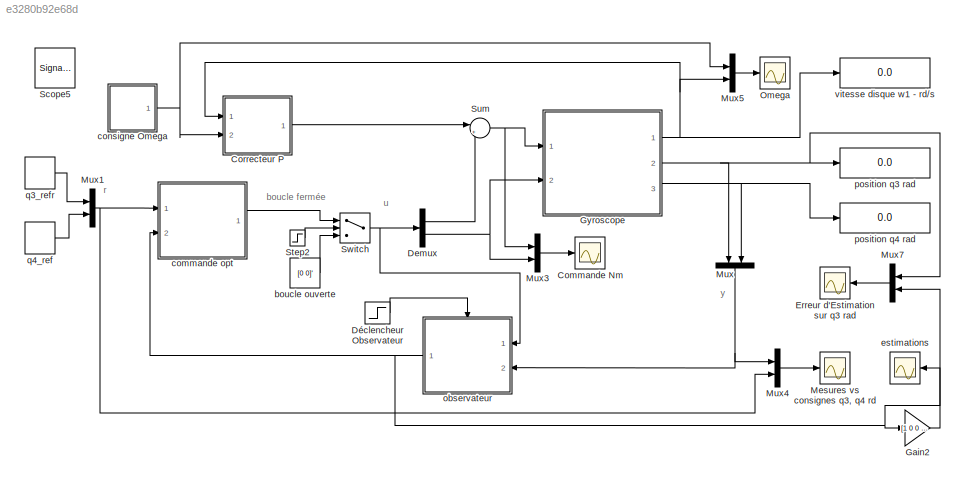
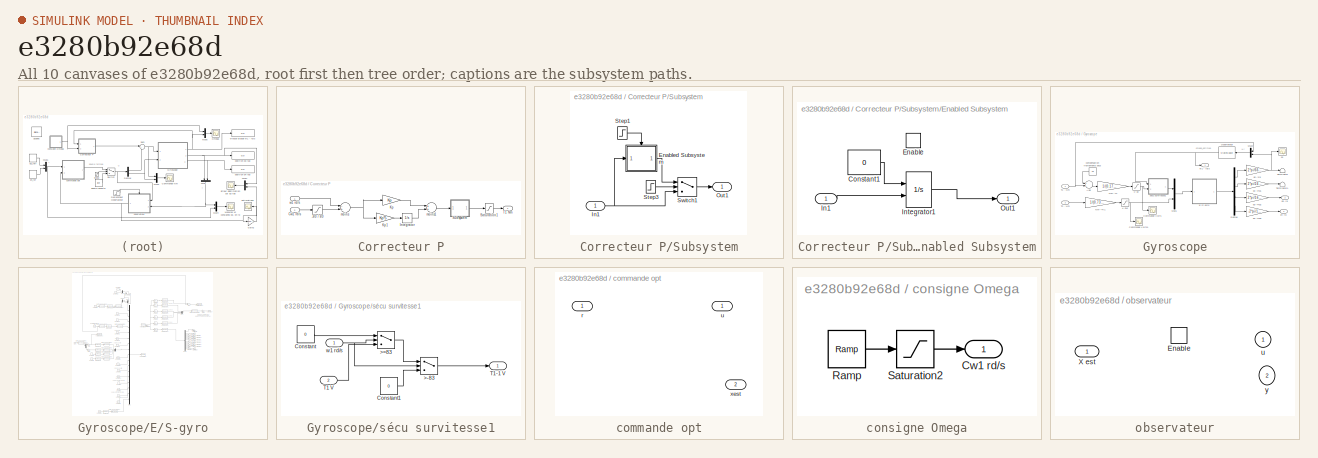
[diagram: thumbnail index - all 10 canvases of the model, root first then tree order]
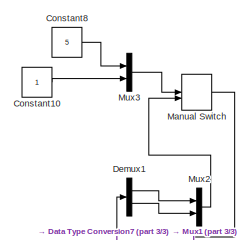
[diagram: Gyroscope/E/S-gyro - part 1/3, top center region]
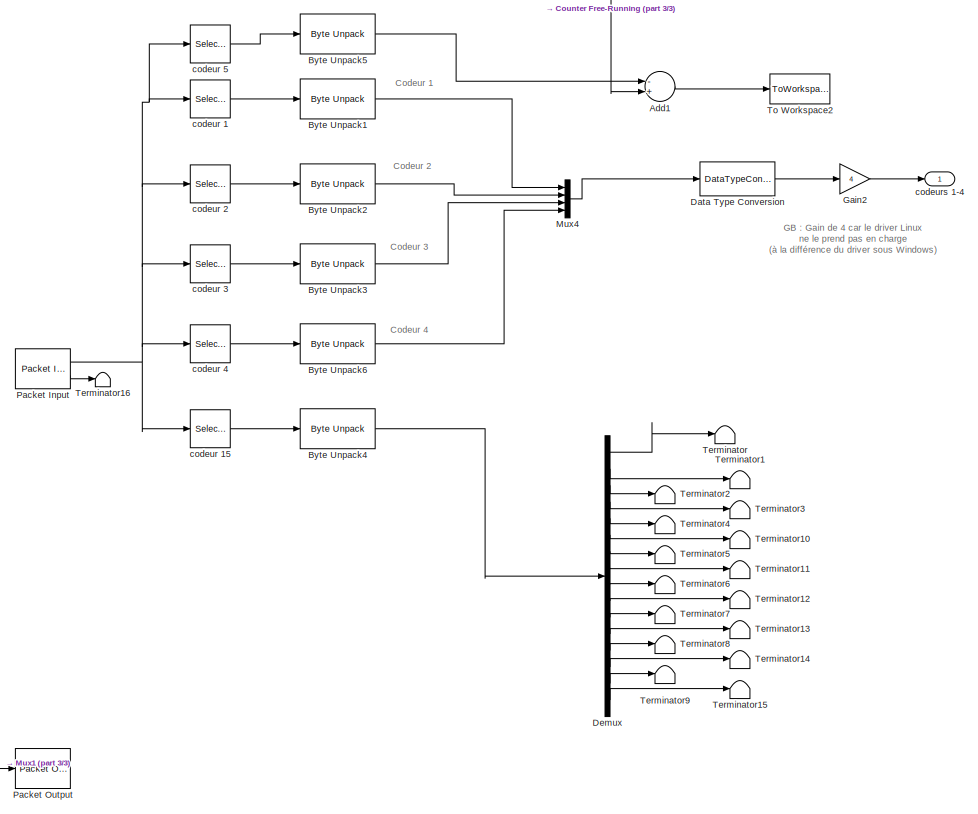
[diagram: Gyroscope/E/S-gyro - part 2/3, middle right region]
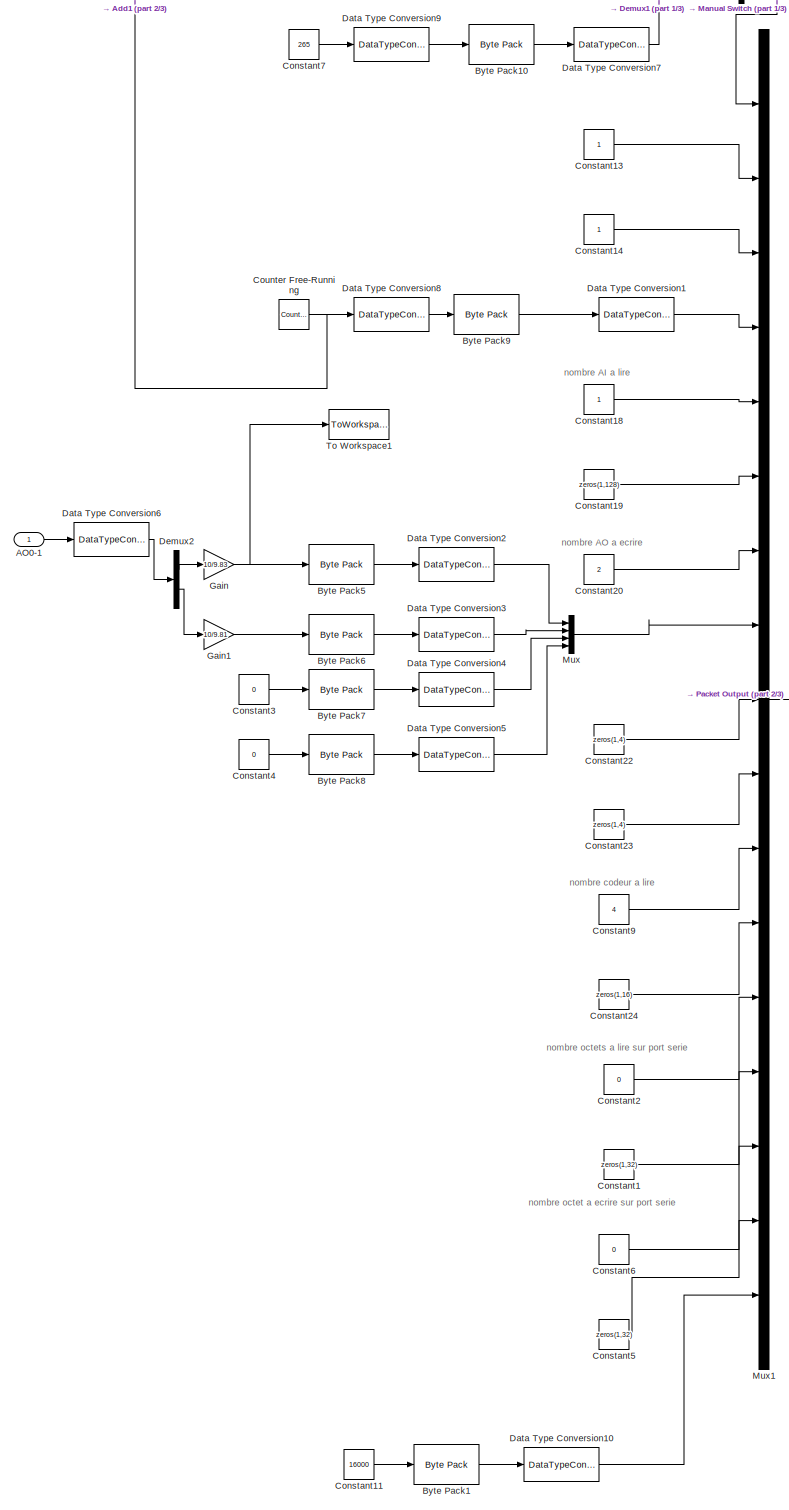
[diagram: Gyroscope/E/S-gyro - part 3/3, left side, full height]
MODEL slx_e3280b92e68d
KIND model
BLOCK [Scope] Commande Nm
  DataFormat = StructureWithTime
  Floating = off
  LimitDataPoints = off
  NumInputPorts = 1
  Ports = [1]
  SampleTime = 0
  SaveName = commande
  SaveToWorkspace = on
  ShowLegends = off
  TimeRange = 70
  YMax = 0.5
  YMin = -0.2
BLOCK [SubSystem] Correcteur P
  FunctionWithSeparateData = off
  MaskHideContents = off
  MinAlgLoopOccurrences = off
  Opaque = off
  Ports = [2, 1]
  PropExecContextOutsideSubsystem = off
  RTWSystemCode = Auto
  RequestExecContextInheritance = off
BLOCK [Saturate] Correcteur P/-80 // 80
  InputPortMap = u0
  LowerLimit = -80
  Ports = [1, 1]
  UpperLimit = 80
BLOCK [Inport] Correcteur P/Cw1 rd//s
  IconDisplay = Port number
  Port = 2
BLOCK [Integrator] Correcteur P/Integrator
  Ports = [1, 1]
BLOCK [Gain] Correcteur P/Kp
  Gain = Kp
  OutDataTypeStr = Inherit: Inherit via internal rule
  ParamDataTypeStr = Inherit: Inherit via internal rule
  SaturateOnIntegerOverflow = off
BLOCK [Gain] Correcteur P/Kp1
  Gain = Kp*5
  OutDataTypeStr = Inherit: Inherit via internal rule
  ParamDataTypeStr = Inherit: Inherit via internal rule
  SaturateOnIntegerOverflow = off
BLOCK [Saturate] Correcteur P/Saturation1
  InputPortMap = u0
  LowerLimit = -0.2
  Ports = [1, 1]
  UpperLimit = 0.2
BLOCK [SubSystem] Correcteur P/Subsystem
  FunctionWithSeparateData = off
  MaskHideContents = off
  MinAlgLoopOccurrences = off
  Opaque = off
  Ports = [1, 1]
  PropExecContextOutsideSubsystem = off
  RTWSystemCode = Auto
  RequestExecContextInheritance = off
BLOCK [SubSystem] Correcteur P/Subsystem/Enabled Subsystem
  FunctionWithSeparateData = off
  MaskHideContents = off
  MinAlgLoopOccurrences = off
  Opaque = off
  Ports = [1, 1, 1]
  PropExecContextOutsideSubsystem = off
  RTWSystemCode = Auto
  RequestExecContextInheritance = off
  TreatAsAtomicUnit = on
BLOCK [Constant] Correcteur P/Subsystem/Enabled Subsystem/Constant1
  Value = 0
BLOCK [EnablePort] Correcteur P/Subsystem/Enabled Subsystem/Enable
  Ports = []
BLOCK [Inport] Correcteur P/Subsystem/Enabled Subsystem/In1
  IconDisplay = Port number
BLOCK [Integrator] Correcteur P/Subsystem/Enabled Subsystem/Integrator1
  InitialConditionSource = external
  Ports = [2, 1]
BLOCK [Outport] Correcteur P/Subsystem/Enabled Subsystem/Out1
  IconDisplay = Port number
BLOCK [Inport] Correcteur P/Subsystem/In1
  IconDisplay = Port number
BLOCK [Outport] Correcteur P/Subsystem/Out1
  IconDisplay = Port number
BLOCK [Step] Correcteur P/Subsystem/Step1
  SampleTime = 0
  Time = 12
BLOCK [Step] Correcteur P/Subsystem/Step3
  SampleTime = 0
  Time = 14
BLOCK [Switch] Correcteur P/Subsystem/Switch1
  InputSameDT = off
  SaturateOnIntegerOverflow = off
  Threshold = 1
BLOCK [Outport] Correcteur P/T1 Nm
  IconDisplay = Port number
BLOCK [Sum] Correcteur P/moins
  InputSameDT = off
  Inputs = -+
  OutDataTypeStr = Inherit: Inherit via internal rule
  Ports = [2, 1]
  SaturateOnIntegerOverflow = off
BLOCK [Sum] Correcteur P/moins1
  InputSameDT = off
  OutDataTypeStr = Inherit: Inherit via internal rule
  Ports = [2, 1]
  SaturateOnIntegerOverflow = off
BLOCK [Inport] Correcteur P/w1 rd//s
  IconDisplay = Port number
BLOCK [Demux] Demux
  DisplayOption = bar
  Outputs = 2
  Ports = [1, 2]
BLOCK [Step] Déclencheur Observateur
  SampleTime = 0
BLOCK [Scope] Erreur d'Estimation sur q3 rad
  DataFormat = StructureWithTime
  Floating = off
  LimitDataPoints = off
  NumInputPorts = 1
  Ports = [1]
  SampleTime = 0
  SaveName = theta3
  SaveToWorkspace = on
  ShowLegends = off
  TimeRange = 70
  YMax = 0.8
  YMin = -0.6000000000000001
BLOCK [Gain] Gain2
  Gain = [1 0 0 0 0]
  Multiplication = Matrix(K*u) (u vector)
  OutDataTypeStr = Inherit: Inherit via internal rule
  ParamDataTypeStr = Inherit: Inherit via internal rule
  SaturateOnIntegerOverflow = off
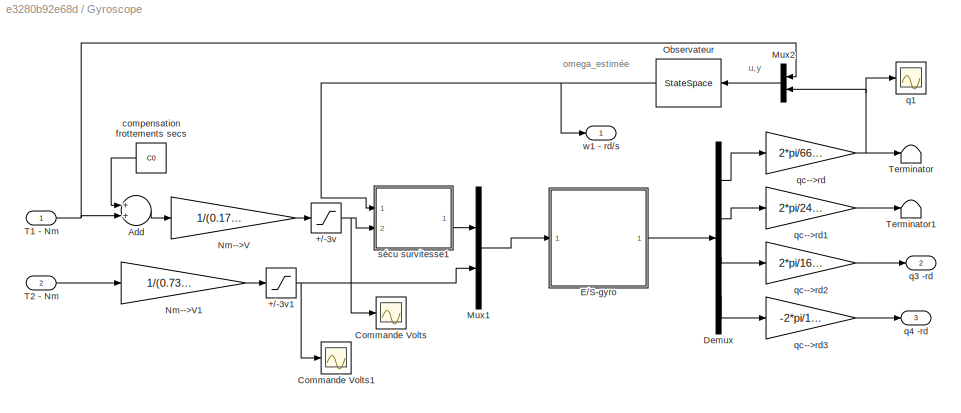
BLOCK [SubSystem] Gyroscope
  FunctionWithSeparateData = off
  MaskHideContents = off
  MinAlgLoopOccurrences = off
  Opaque = off
  Ports = [2, 3]
  PropExecContextOutsideSubsystem = off
  RTWSystemCode = Auto
  RequestExecContextInheritance = off
BLOCK [Saturate] Gyroscope/+//-3v
  InputPortMap = u0
  LowerLimit = -5
  Ports = [1, 1]
  UpperLimit = 5
BLOCK [Saturate] Gyroscope/+//-3v1
  InputPortMap = u0
  LowerLimit = -10
  Ports = [1, 1]
  UpperLimit = +10
BLOCK [Sum] Gyroscope/Add
  InputSameDT = off
  OutDataTypeStr = Inherit: Inherit via internal rule
  Ports = [2, 1]
  SaturateOnIntegerOverflow = off
BLOCK [Scope] Gyroscope/Commande Volts
  DataFormat = StructureWithTime
  Floating = off
  LimitDataPoints = off
  NumInputPorts = 1
  Ports = [1]
  SampleTime = 0
  SaveName = commande1
  SaveToWorkspace = on
  ShowLegends = off
  TimeRange = 40
  YMax = 3
  YMin = -3
BLOCK [Scope] Gyroscope/Commande Volts1
  DataFormat = StructureWithTime
  Floating = off
  LimitDataPoints = off
  NumInputPorts = 1
  Ports = [1]
  SampleTime = 0
  SaveName = commande2
  SaveToWorkspace = on
  ShowLegends = off
  TimeRange = 40
  YMax = 4
  YMin = -4
BLOCK [Demux] Gyroscope/Demux
  DisplayOption = bar
  Ports = [1, 4]
BLOCK [SubSystem] Gyroscope/E//S-gyro
  FunctionWithSeparateData = off
  MaskHideContents = off
  MinAlgLoopOccurrences = off
  Opaque = off
  Ports = [1, 1]
  PropExecContextOutsideSubsystem = off
  RTWSystemCode = Auto
  RequestExecContextInheritance = off
BLOCK [Inport] Gyroscope/E//S-gyro/AO0-1 
  IconDisplay = Port number
BLOCK [Sum] Gyroscope/E//S-gyro/Add1
  InputSameDT = off
  Inputs = -+
  OutDataTypeStr = Inherit: Inherit via internal rule
  Ports = [2, 1]
  SaturateOnIntegerOverflow = off
BLOCK [Reference] Gyroscope/E//S-gyro/Byte Pack1  REF=etargetslib/Byte Pack
  Ports = [1, 1]
  SourceBlock = etargetslib/Byte Pack
  SourceType = Byte pack
  byteAlign = 1
  datatypes = {'uint32'}
BLOCK [Reference] Gyroscope/E//S-gyro/Byte Pack10  REF=etargetslib/Byte Pack
  Ports = [1, 1]
  SourceBlock = etargetslib/Byte Pack
  SourceType = Byte pack
  byteAlign = 1
  datatypes = {'int16'}
BLOCK [Reference] Gyroscope/E//S-gyro/Byte Pack5  REF=etargetslib/Byte Pack
  Ports = [1, 1]
  SourceBlock = etargetslib/Byte Pack
  SourceType = Byte pack
  byteAlign = 1
  datatypes = {'double'}
BLOCK [Reference] Gyroscope/E//S-gyro/Byte Pack6  REF=etargetslib/Byte Pack
  Ports = [1, 1]
  SourceBlock = etargetslib/Byte Pack
  SourceType = Byte pack
  byteAlign = 1
  datatypes = {'double'}
BLOCK [Reference] Gyroscope/E//S-gyro/Byte Pack7  REF=etargetslib/Byte Pack
  Ports = [1, 1]
  SourceBlock = etargetslib/Byte Pack
  SourceType = Byte pack
  byteAlign = 1
  datatypes = {'double'}
BLOCK [Reference] Gyroscope/E//S-gyro/Byte Pack8  REF=etargetslib/Byte Pack
  Ports = [1, 1]
  SourceBlock = etargetslib/Byte Pack
  SourceType = Byte pack
  byteAlign = 1
  datatypes = {'double'}
BLOCK [Reference] Gyroscope/E//S-gyro/Byte Pack9  REF=etargetslib/Byte Pack
  Ports = [1, 1]
  SourceBlock = etargetslib/Byte Pack
  SourceType = Byte pack
  byteAlign = 1
  datatypes = {'uint32'}
BLOCK [Reference] Gyroscope/E//S-gyro/Byte Unpack1  REF=etargetslib/Byte Unpack
  Ports = [1, 1]
  SourceBlock = etargetslib/Byte Unpack
  SourceType = Byte Unpack
  byteAlign = 4
  datatypes = {'int32'}
  dimensions = {[1]}
BLOCK [Reference] Gyroscope/E//S-gyro/Byte Unpack2  REF=etargetslib/Byte Unpack
  Ports = [1, 1]
  SourceBlock = etargetslib/Byte Unpack
  SourceType = Byte Unpack
  byteAlign = 4
  datatypes = {'int32'}
  dimensions = {[1]}
BLOCK [Reference] Gyroscope/E//S-gyro/Byte Unpack3  REF=etargetslib/Byte Unpack
  Ports = [1, 1]
  SourceBlock = etargetslib/Byte Unpack
  SourceType = Byte Unpack
  byteAlign = 4
  datatypes = {'int32'}
  dimensions = {[1]}
BLOCK [Reference] Gyroscope/E//S-gyro/Byte Unpack4  REF=etargetslib/Byte Unpack
  Ports = [1, 1]
  SourceBlock = etargetslib/Byte Unpack
  SourceType = Byte Unpack
  byteAlign = 4
  datatypes = {'double'}
  dimensions = {[16]}
BLOCK [Reference] Gyroscope/E//S-gyro/Byte Unpack5  REF=etargetslib/Byte Unpack
  Ports = [1, 1]
  SourceBlock = etargetslib/Byte Unpack
  SourceType = Byte Unpack
  byteAlign = 4
  datatypes = {'uint32'}
  dimensions = {[1]}
BLOCK [Reference] Gyroscope/E//S-gyro/Byte Unpack6  REF=etargetslib/Byte Unpack
  Ports = [1, 1]
  SourceBlock = etargetslib/Byte Unpack
  SourceType = Byte Unpack
  byteAlign = 4
  datatypes = {'int32'}
  dimensions = {[1]}
BLOCK [Constant] Gyroscope/E//S-gyro/Constant1
  Value = zeros(1,32)
BLOCK [Constant] Gyroscope/E//S-gyro/Constant10
BLOCK [Constant] Gyroscope/E//S-gyro/Constant11
  OutDataTypeStr = uint32
  Value = 16000
BLOCK [Constant] Gyroscope/E//S-gyro/Constant13
BLOCK [Constant] Gyroscope/E//S-gyro/Constant14
BLOCK [Constant] Gyroscope/E//S-gyro/Constant18
BLOCK [Constant] Gyroscope/E//S-gyro/Constant19
  Value = zeros(1,128)
BLOCK [Constant] Gyroscope/E//S-gyro/Constant2
  Value = 0
BLOCK [Constant] Gyroscope/E//S-gyro/Constant20
  OutDataTypeStr = Inherit: Inherit via back propagation
  Value = 2
BLOCK [Constant] Gyroscope/E//S-gyro/Constant22
  Value = zeros(1,4)
BLOCK [Constant] Gyroscope/E//S-gyro/Constant23
  Value = zeros(1,4)
BLOCK [Constant] Gyroscope/E//S-gyro/Constant24
  Value = zeros(1,16)
BLOCK [Constant] Gyroscope/E//S-gyro/Constant3
  OutDataTypeStr = double
  Value = 0
BLOCK [Constant] Gyroscope/E//S-gyro/Constant4
  OutDataTypeStr = double
  Value = 0
BLOCK [Constant] Gyroscope/E//S-gyro/Constant5
  Value = zeros(1,32)
BLOCK [Constant] Gyroscope/E//S-gyro/Constant6
  Value = 0
BLOCK [Constant] Gyroscope/E//S-gyro/Constant7
  Value = 265
BLOCK [Constant] Gyroscope/E//S-gyro/Constant8
  Value = 5
BLOCK [Constant] Gyroscope/E//S-gyro/Constant9
  Value = 4
BLOCK [Reference] Gyroscope/E//S-gyro/Counter Free-Running  REF=simulink/Sources/Counter
Free-Running
  NumBits = 32
  Ports = [0, 1]
  SourceBlock = simulink/Sources/Counter\nFree-Running
  SourceType = Counter Free-Running
  tsamp = -1
BLOCK [DataTypeConversion] Gyroscope/E//S-gyro/Data Type Conversion
  RndMeth = Floor
  SaturateOnIntegerOverflow = off
BLOCK [DataTypeConversion] Gyroscope/E//S-gyro/Data Type Conversion1
  RndMeth = Floor
  SaturateOnIntegerOverflow = off
BLOCK [DataTypeConversion] Gyroscope/E//S-gyro/Data Type Conversion10
  RndMeth = Floor
  SaturateOnIntegerOverflow = off
BLOCK [DataTypeConversion] Gyroscope/E//S-gyro/Data Type Conversion2
  RndMeth = Floor
  SaturateOnIntegerOverflow = off
BLOCK [DataTypeConversion] Gyroscope/E//S-gyro/Data Type Conversion3
  RndMeth = Floor
  SaturateOnIntegerOverflow = off
BLOCK [DataTypeConversion] Gyroscope/E//S-gyro/Data Type Conversion4
  RndMeth = Floor
  SaturateOnIntegerOverflow = off
BLOCK [DataTypeConversion] Gyroscope/E//S-gyro/Data Type Conversion5
  RndMeth = Floor
  SaturateOnIntegerOverflow = off
BLOCK [DataTypeConversion] Gyroscope/E//S-gyro/Data Type Conversion6
  RndMeth = Floor
  SaturateOnIntegerOverflow = off
BLOCK [DataTypeConversion] Gyroscope/E//S-gyro/Data Type Conversion7
  RndMeth = Floor
  SaturateOnIntegerOverflow = off
BLOCK [DataTypeConversion] Gyroscope/E//S-gyro/Data Type Conversion8
  RndMeth = Floor
  SaturateOnIntegerOverflow = off
BLOCK [DataTypeConversion] Gyroscope/E//S-gyro/Data Type Conversion9
  RndMeth = Floor
  SaturateOnIntegerOverflow = off
BLOCK [Demux] Gyroscope/E//S-gyro/Demux
  DisplayOption = bar
  Outputs = 16
  Ports = [1, 16]
BLOCK [Demux] Gyroscope/E//S-gyro/Demux1
  DisplayOption = bar
  Outputs = 2
  Ports = [1, 2]
BLOCK [Demux] Gyroscope/E//S-gyro/Demux2
  DisplayOption = bar
  Outputs = 2
  Ports = [1, 2]
BLOCK [Gain] Gyroscope/E//S-gyro/Gain
  Gain = 10/9.83
  OutDataTypeStr = Inherit: Inherit via internal rule
  ParamDataTypeStr = Inherit: Inherit via internal rule
  SaturateOnIntegerOverflow = off
BLOCK [Gain] Gyroscope/E//S-gyro/Gain1
  Gain = 10/9.81
  OutDataTypeStr = Inherit: Inherit via internal rule
  ParamDataTypeStr = Inherit: Inherit via internal rule
  SaturateOnIntegerOverflow = off
BLOCK [Gain] Gyroscope/E//S-gyro/Gain2
  Gain = 4
  OutDataTypeStr = Inherit: Inherit via internal rule
  ParamDataTypeStr = Inherit: Inherit via internal rule
  SaturateOnIntegerOverflow = off
BLOCK [ManualSwitch] Gyroscope/E//S-gyro/Manual Switch
  CurrentSetting = 0
BLOCK [Mux] Gyroscope/E//S-gyro/Mux
  DisplayOption = bar
  Ports = [4, 1]
BLOCK [Mux] Gyroscope/E//S-gyro/Mux1
  DisplayOption = bar
  Inputs = 17
  Ports = [17, 1]
BLOCK [Mux] Gyroscope/E//S-gyro/Mux2
  DisplayOption = bar
  Inputs = 2
  Ports = [2, 1]
BLOCK [Mux] Gyroscope/E//S-gyro/Mux3
  DisplayOption = bar
  Inputs = 2
  Ports = [2, 1]
BLOCK [Mux] Gyroscope/E//S-gyro/Mux4
  DisplayOption = bar
  Ports = [4, 1]
BLOCK [Reference] Gyroscope/E//S-gyro/Packet Input  REF=rtwinlib/Packet Input
  AttributesFormatString = Standard Devices\nUDP Protocol [26CAh]
  ByteOrder = 1
  DataTypes = '265*uint8'
  DrvAddress = 9930
  DrvName = Standard_Devices/UDP_Protocol
  DrvOptions = [3232235522 9930]
  MaxMissedTicks = 10
  PacketID = 1
  PacketSize = 265
  Ports = [0, 2]
  SampleTime = Te
  ShowError = off
  ShowMissedTicks = on
  ShowReady = off
  ShowTimestamp = off
  SourceBlock = rtwinlib/Packet Input
  SourceType = RTWin Packet Input
  YieldWhenWaiting = off
BLOCK [Reference] Gyroscope/E//S-gyro/Packet Output  REF=rtwinlib/Packet Output
  AttributesFormatString = Standard Devices\nUDP Protocol [26CAh]
  ByteOrder = 1
  DataTypes = '265*uint8'
  DrvAddress = 9930
  DrvName = Standard_Devices/UDP_Protocol
  DrvOptions = [3232235522 9930]
  FinalValue = []
  InitialValue = []
  MaxMissedTicks = 10
  PacketID = 1
  PacketSize = 265
  Ports = [1]
  SampleTime = Te
  ShowError = off
  ShowMissedTicks = off
  ShowReady = off
  SourceBlock = rtwinlib/Packet Output
  SourceType = RTWin Packet Output
  YieldWhenWaiting = off
BLOCK [Terminator] Gyroscope/E//S-gyro/Terminator
BLOCK [Terminator] Gyroscope/E//S-gyro/Terminator1
BLOCK [Terminator] Gyroscope/E//S-gyro/Terminator10
BLOCK [Terminator] Gyroscope/E//S-gyro/Terminator11
BLOCK [Terminator] Gyroscope/E//S-gyro/Terminator12
BLOCK [Terminator] Gyroscope/E//S-gyro/Terminator13
BLOCK [Terminator] Gyroscope/E//S-gyro/Terminator14
BLOCK [Terminator] Gyroscope/E//S-gyro/Terminator15
BLOCK [Terminator] Gyroscope/E//S-gyro/Terminator16
BLOCK [Terminator] Gyroscope/E//S-gyro/Terminator2
BLOCK [Terminator] Gyroscope/E//S-gyro/Terminator3
BLOCK [Terminator] Gyroscope/E//S-gyro/Terminator4
BLOCK [Terminator] Gyroscope/E//S-gyro/Terminator5
BLOCK [Terminator] Gyroscope/E//S-gyro/Terminator6
BLOCK [Terminator] Gyroscope/E//S-gyro/Terminator7
BLOCK [Terminator] Gyroscope/E//S-gyro/Terminator8
BLOCK [Terminator] Gyroscope/E//S-gyro/Terminator9
BLOCK [ToWorkspace] Gyroscope/E//S-gyro/To Workspace1
  MaxDataPoints = inf
  Ports = [1]
  SampleTime = -1
  SaveFormat = Structure With Time
  VariableName = aoser
BLOCK [ToWorkspace] Gyroscope/E//S-gyro/To Workspace2
  MaxDataPoints = inf
  Ports = [1]
  SampleTime = -1
  SaveFormat = Structure With Time
  VariableName = retard
BLOCK [Selector] Gyroscope/E//S-gyro/codeur 1
  IndexOptions = Index vector (dialog)
  Indices = [180 181 182 183]
  InputPortWidth = 265
  OutputSizes = 1
  Ports = [1, 1]
BLOCK [Selector] Gyroscope/E//S-gyro/codeur 15
  IndexOptions = Index vector (dialog)
  Indices = [10:137]
  InputPortWidth = 265
  OutputSizes = 1
  Ports = [1, 1]
BLOCK [Selector] Gyroscope/E//S-gyro/codeur 2
  IndexOptions = Index vector (dialog)
  Indices = [184 185 186 187]
  InputPortWidth = 265
  OutputSizes = 1
  Ports = [1, 1]
BLOCK [Selector] Gyroscope/E//S-gyro/codeur 3
  IndexOptions = Index vector (dialog)
  Indices = [188 189 190 191]
  InputPortWidth = 265
  OutputSizes = 1
  Ports = [1, 1]
BLOCK [Selector] Gyroscope/E//S-gyro/codeur 4
  IndexOptions = Index vector (dialog)
  Indices = [192 193 194 195]
  InputPortWidth = 265
  OutputSizes = 1
  Ports = [1, 1]
BLOCK [Selector] Gyroscope/E//S-gyro/codeur 5
  IndexOptions = Index vector (dialog)
  Indices = [5 6 7 8]
  InputPortWidth = 265
  OutputSizes = 1
  Ports = [1, 1]
BLOCK [Outport] Gyroscope/E//S-gyro/codeurs 1-4
  IconDisplay = Port number
BLOCK [Mux] Gyroscope/Mux1
  DisplayOption = bar
  Inputs = 2
  Ports = [2, 1]
BLOCK [Mux] Gyroscope/Mux2
  DisplayOption = bar
  Inputs = 2
  Ports = [2, 1]
BLOCK [Gain] Gyroscope/Nm-->V
  Gain = 1/(0.175*0.4)
  OutDataTypeStr = Inherit: Inherit via internal rule
  ParamDataTypeStr = Inherit: Inherit via internal rule
  SaturateOnIntegerOverflow = off
BLOCK [Gain] Gyroscope/Nm-->V1
  Gain = 1/(0.732*0.4)
  OutDataTypeStr = Inherit: Inherit via internal rule
  ParamDataTypeStr = Inherit: Inherit via internal rule
  SaturateOnIntegerOverflow = off
BLOCK [StateSpace] Gyroscope/Observateur
  A = Aobs2
  B = Bobs2
  C = Cobs2
  D = Dobs2
BLOCK [Inport] Gyroscope/T1 - Nm
  IconDisplay = Port number
BLOCK [Inport] Gyroscope/T2 - Nm
  IconDisplay = Port number
  Port = 2
BLOCK [Terminator] Gyroscope/Terminator
BLOCK [Terminator] Gyroscope/Terminator1
BLOCK [Constant] Gyroscope/compensation frottements secs
  Value = C0
BLOCK [Scope] Gyroscope/q1
  DataFormat = StructureWithTime
  Floating = off
  LimitDataPoints = off
  NumInputPorts = 1
  Ports = [1]
  SampleTime = 0
  SaveName = vitesses4
  SaveToWorkspace = on
  ShowLegends = off
  TimeRange = 80
  YMax = 2687.18
  YMin = 2431.26
BLOCK [Outport] Gyroscope/q3 -rd
  IconDisplay = Port number
  Port = 2
BLOCK [Outport] Gyroscope/q4 -rd
  IconDisplay = Port number
  Port = 3
BLOCK [Gain] Gyroscope/qc-->rd
  Gain = 2*pi/6667
  OutDataTypeStr = Inherit: Inherit via internal rule
  ParamDataTypeStr = Inherit: Inherit via internal rule
  SaturateOnIntegerOverflow = off
BLOCK [Gain] Gyroscope/qc-->rd1
  Gain = 2*pi/24400
  OutDataTypeStr = Inherit: Inherit via internal rule
  ParamDataTypeStr = Inherit: Inherit via internal rule
  SaturateOnIntegerOverflow = off
BLOCK [Gain] Gyroscope/qc-->rd2
  Gain = 2*pi/16000
  OutDataTypeStr = Inherit: Inherit via internal rule
  ParamDataTypeStr = Inherit: Inherit via internal rule
  SaturateOnIntegerOverflow = off
BLOCK [Gain] Gyroscope/qc-->rd3
  Gain = -2*pi/16000
  OutDataTypeStr = Inherit: Inherit via internal rule
  ParamDataTypeStr = Inherit: Inherit via internal rule
  SaturateOnIntegerOverflow = off
BLOCK [SubSystem] Gyroscope/sécu survitesse1
  FunctionWithSeparateData = off
  MaskHideContents = off
  MinAlgLoopOccurrences = off
  Opaque = off
  Ports = [2, 1]
  PropExecContextOutsideSubsystem = off
  RTWSystemCode = Auto
  RequestExecContextInheritance = off
BLOCK [Switch] Gyroscope/sécu survitesse1/>-83
  Criteria = u2 > Threshold
  InputSameDT = off
  SaturateOnIntegerOverflow = off
  Threshold = -83
BLOCK [Switch] Gyroscope/sécu survitesse1/>=83
  InputSameDT = off
  SaturateOnIntegerOverflow = off
  Threshold = 83
BLOCK [Constant] Gyroscope/sécu survitesse1/Constant
  Value = 0
BLOCK [Constant] Gyroscope/sécu survitesse1/Constant1
  Value = 0
BLOCK [Inport] Gyroscope/sécu survitesse1/T1 V
  IconDisplay = Port number
  Port = 2
BLOCK [Outport] Gyroscope/sécu survitesse1/T1-1  V
  IconDisplay = Port number
BLOCK [Inport] Gyroscope/sécu survitesse1/w1 rd//s
  IconDisplay = Port number
BLOCK [Outport] Gyroscope/w1 - rd//s
  IconDisplay = Port number
BLOCK [Scope] Mesures vs consignes q3, q4 rd
  DataFormat = StructureWithTime
  Floating = off
  LimitDataPoints = off
  NumInputPorts = 1
  Ports = [1]
  SampleTime = 0
  SaveName = consigne
  SaveToWorkspace = on
  ShowLegends = off
  TimeRange = 70
  YMax = 0.35
  YMin = -0.35
BLOCK [Mux] Mux
  DisplayOption = bar
  Inputs = 2
  Ports = [2, 1]
BLOCK [Mux] Mux1
  DisplayOption = bar
  Inputs = 2
  Ports = [2, 1]
BLOCK [Mux] Mux3
  DisplayOption = bar
  Inputs = 2
  Ports = [2, 1]
BLOCK [Mux] Mux4
  DisplayOption = bar
  Inputs = 2
  Ports = [2, 1]
BLOCK [Mux] Mux5
  DisplayOption = bar
  Inputs = 2
  Ports = [2, 1]
BLOCK [Mux] Mux7
  DisplayOption = bar
  Inputs = 2
  Ports = [2, 1]
BLOCK [Scope] Omega
  DataFormat = StructureWithTime
  Floating = off
  LimitDataPoints = off
  NumInputPorts = 1
  Ports = [1]
  SampleTime = 0
  SaveName = omega
  SaveToWorkspace = on
  ShowLegends = off
  TimeRange = 60
  YMax = 60
  YMin = 0
BLOCK [SignalViewerScope] Scope5
  IOType = viewer
  MaxDataPoints = 7500
  NumInputPorts = 1
  Ports = []
  RefreshTime = 0.035000
  ShowDataMarkers = off
  ShowLegends = off
BLOCK [Step] Step2
  SampleTime = 0
  Time = 15
BLOCK [Sum] Sum
  IconShape = round
  InputSameDT = off
  Inputs = |++
  OutDataTypeStr = Inherit: Inherit via internal rule
  Ports = [2, 1]
  SaturateOnIntegerOverflow = off
BLOCK [Switch] Switch
  InputSameDT = off
  SaturateOnIntegerOverflow = off
  Threshold = 1
BLOCK [Constant] boucle ouverte
  Value = [0 0]'
BLOCK [SubSystem] commande opt
  FunctionWithSeparateData = off
  MaskHideContents = off
  MinAlgLoopOccurrences = off
  Opaque = off
  Ports = [2, 1]
  PropExecContextOutsideSubsystem = off
  RTWSystemCode = Auto
  RequestExecContextInheritance = off
BLOCK [Inport] commande opt/r
  IconDisplay = Port number
BLOCK [Outport] commande opt/u
  IconDisplay = Port number
BLOCK [Inport] commande opt/xest
  IconDisplay = Port number
  Port = 2
BLOCK [SubSystem] consigne Omega
  FunctionWithSeparateData = off
  MaskHideContents = off
  MinAlgLoopOccurrences = off
  Opaque = off
  Ports = [0, 1]
  PropExecContextOutsideSubsystem = off
  RTWSystemCode = Auto
  RequestExecContextInheritance = off
BLOCK [Outport] consigne Omega/Cw1 rd//s
  IconDisplay = Port number
BLOCK [Reference] consigne Omega/Ramp  REF=simulink/Sources/Ramp
  FunctionWithSeparateData = off
  Ports = [0, 1]
  RTWMemSecDataConstants = Inherit from model
  RTWMemSecDataInternal = Inherit from model
  RTWMemSecDataParameters = Inherit from model
  RTWMemSecFuncExecute = Inherit from model
  RTWMemSecFuncInitTerm = Inherit from model
  ShowPortLabels = FromPortIcon
  SourceBlock = simulink/Sources/Ramp
  SourceType = Ramp
  SystemSampleTime = -1
  VectorParams1D = on
  X0 = 0
  slope = 5
  start = 0
BLOCK [Saturate] consigne Omega/Saturation2
  InputPortMap = u0
  LowerLimit = 0
  Ports = [1, 1]
  UpperLimit = Omega
BLOCK [Scope] estimations
  DataFormat = StructureWithTime
  Floating = off
  LimitDataPoints = off
  NumInputPorts = 1
  Ports = [1]
  SampleTime = 0
  SaveName = estimations
  SaveToWorkspace = on
  ShowLegends = off
  TimeRange = 70
  YMax = 1
  YMin = -1.5
BLOCK [SubSystem] observateur
  FunctionWithSeparateData = off
  MaskHideContents = off
  MinAlgLoopOccurrences = off
  Opaque = off
  Ports = [2, 1, 1]
  PropExecContextOutsideSubsystem = off
  RTWSystemCode = Auto
  RequestExecContextInheritance = off
BLOCK [EnablePort] observateur/Enable
  Ports = []
BLOCK [Outport] observateur/X est
  IconDisplay = Port number
BLOCK [Inport] observateur/u
  IconDisplay = Port number
BLOCK [Inport] observateur/y
  IconDisplay = Port number
  Port = 2
BLOCK [Display] position q3 rad
  Decimation = 1
  Lockdown = off
  Ports = [1]
BLOCK [Display] position q4 rad
  Decimation = 1
  Lockdown = off
  Ports = [1]
BLOCK [DiscretePulseGenerator] q3_refr
  Amplitude = 10*pi/180
  Period = 20
  PhaseDelay = 20
  Ports = [0, 1]
  PulseType = Time based
  PulseWidth = 50
BLOCK [DiscretePulseGenerator] q4_ref
  Amplitude = 10*pi/180
  Period = 20
  PhaseDelay = 25
  Ports = [0, 1]
  PulseType = Time based
  PulseWidth = 50
BLOCK [Display] vitesse disque w1 - rd//s
  Decimation = 1
  Lockdown = off
  Ports = [1]
ANNOTATION (root): boucle fermée
ANNOTATION (root): r
ANNOTATION (root): u
ANNOTATION (root): y
ANNOTATION Gyroscope: omega_estimée
ANNOTATION Gyroscope: u,y
ANNOTATION Gyroscope/E//S-gyro: Codeur 1
ANNOTATION Gyroscope/E//S-gyro: Codeur 2
ANNOTATION Gyroscope/E//S-gyro: Codeur 3
ANNOTATION Gyroscope/E//S-gyro: Codeur 4
ANNOTATION Gyroscope/E//S-gyro: GB : Gain de 4 car le driver Linux ne le prend pas en charge (à la différence du driver sous Windows)
ANNOTATION Gyroscope/E//S-gyro: nombre AI a lire
ANNOTATION Gyroscope/E//S-gyro: nombre AO a ecrire
ANNOTATION Gyroscope/E//S-gyro: nombre codeur a lire
ANNOTATION Gyroscope/E//S-gyro: nombre octet a ecrire sur port serie
ANNOTATION Gyroscope/E//S-gyro: nombre octets a lire sur port serie
LINE Correcteur P/-80 // 80:1 -> Correcteur P/moins:2
LINE Correcteur P/Cw1 rd//s:1 -> Correcteur P/-80 // 80:1
LINE Correcteur P/Integrator:1 -> Correcteur P/moins1:2
LINE Correcteur P/Kp1:1 -> Correcteur P/Integrator:1
LINE Correcteur P/Kp:1 -> Correcteur P/moins1:1
LINE Correcteur P/Saturation1:1 -> Correcteur P/T1 Nm:1
LINE Correcteur P/Subsystem/Enabled Subsystem/Constant1:1 -> Correcteur P/Subsystem/Enabled Subsystem/Integrator1:1
LINE Correcteur P/Subsystem/Enabled Subsystem/In1:1 -> Correcteur P/Subsystem/Enabled Subsystem/Integrator1:2
LINE Correcteur P/Subsystem/Enabled Subsystem/Integrator1:1 -> Correcteur P/Subsystem/Enabled Subsystem/Out1:1
LINE Correcteur P/Subsystem/Enabled Subsystem:1 -> Correcteur P/Subsystem/Switch1:1
NET Correcteur P/Subsystem/In1:1 -> Correcteur P/Subsystem/Enabled Subsystem:1, Correcteur P/Subsystem/Switch1:3
LINE Correcteur P/Subsystem/Step1:1 -> Correcteur P/Subsystem/Enabled Subsystem:enable
LINE Correcteur P/Subsystem/Step3:1 -> Correcteur P/Subsystem/Switch1:2
LINE Correcteur P/Subsystem/Switch1:1 -> Correcteur P/Subsystem/Out1:1
LINE Correcteur P/Subsystem:1 -> Correcteur P/Saturation1:1
LINE Correcteur P/moins1:1 -> Correcteur P/Subsystem:1
NET Correcteur P/moins:1 -> Correcteur P/Kp1:1, Correcteur P/Kp:1
LINE Correcteur P/w1 rd//s:1 -> Correcteur P/moins:1
LINE Correcteur P:1 -> Sum:1
LINE Demux:1 -> Sum:2
NET Demux:2 -> Gyroscope:2, Mux3:2
LINE Déclencheur Observateur:1 -> observateur:enable
LINE Gain2:1 -> Mux7:2
NET Gyroscope/+//-3v1:1 -> Gyroscope/Commande Volts1:1, Gyroscope/Mux1:2
NET Gyroscope/+//-3v:1 -> Gyroscope/Commande Volts:1, Gyroscope/sécu survitesse1:2
LINE Gyroscope/Add:1 -> Gyroscope/Nm-->V:1
LINE Gyroscope/Demux:1 -> Gyroscope/qc-->rd:1
LINE Gyroscope/Demux:2 -> Gyroscope/qc-->rd1:1
LINE Gyroscope/Demux:3 -> Gyroscope/qc-->rd2:1
LINE Gyroscope/Demux:4 -> Gyroscope/qc-->rd3:1
LINE Gyroscope/E//S-gyro/AO0-1 :1 -> Gyroscope/E//S-gyro/Data Type Conversion6:1
LINE Gyroscope/E//S-gyro/Add1:1 -> Gyroscope/E//S-gyro/To Workspace2:1
LINE Gyroscope/E//S-gyro/Byte Pack10:1 -> Gyroscope/E//S-gyro/Data Type Conversion7:1
LINE Gyroscope/E//S-gyro/Byte Pack1:1 -> Gyroscope/E//S-gyro/Data Type Conversion10:1
LINE Gyroscope/E//S-gyro/Byte Pack5:1 -> Gyroscope/E//S-gyro/Data Type Conversion2:1
LINE Gyroscope/E//S-gyro/Byte Pack6:1 -> Gyroscope/E//S-gyro/Data Type Conversion3:1
LINE Gyroscope/E//S-gyro/Byte Pack7:1 -> Gyroscope/E//S-gyro/Data Type Conversion4:1
LINE Gyroscope/E//S-gyro/Byte Pack8:1 -> Gyroscope/E//S-gyro/Data Type Conversion5:1
LINE Gyroscope/E//S-gyro/Byte Pack9:1 -> Gyroscope/E//S-gyro/Data Type Conversion1:1
LINE Gyroscope/E//S-gyro/Byte Unpack1:1 -> Gyroscope/E//S-gyro/Mux4:1
LINE Gyroscope/E//S-gyro/Byte Unpack2:1 -> Gyroscope/E//S-gyro/Mux4:2
LINE Gyroscope/E//S-gyro/Byte Unpack3:1 -> Gyroscope/E//S-gyro/Mux4:3
LINE Gyroscope/E//S-gyro/Byte Unpack4:1 -> Gyroscope/E//S-gyro/Demux:1
LINE Gyroscope/E//S-gyro/Byte Unpack5:1 -> Gyroscope/E//S-gyro/Add1:1
LINE Gyroscope/E//S-gyro/Byte Unpack6:1 -> Gyroscope/E//S-gyro/Mux4:4
LINE Gyroscope/E//S-gyro/Constant10:1 -> Gyroscope/E//S-gyro/Mux3:2
LINE Gyroscope/E//S-gyro/Constant11:1 -> Gyroscope/E//S-gyro/Byte Pack1:1
LINE Gyroscope/E//S-gyro/Constant13:1 -> Gyroscope/E//S-gyro/Mux1:2
LINE Gyroscope/E//S-gyro/Constant14:1 -> Gyroscope/E//S-gyro/Mux1:3
LINE Gyroscope/E//S-gyro/Constant18:1 -> Gyroscope/E//S-gyro/Mux1:5
LINE Gyroscope/E//S-gyro/Constant19:1 -> Gyroscope/E//S-gyro/Mux1:6
LINE Gyroscope/E//S-gyro/Constant1:1 -> Gyroscope/E//S-gyro/Mux1:14
LINE Gyroscope/E//S-gyro/Constant20:1 -> Gyroscope/E//S-gyro/Mux1:7
LINE Gyroscope/E//S-gyro/Constant22:1 -> Gyroscope/E//S-gyro/Mux1:9
LINE Gyroscope/E//S-gyro/Constant23:1 -> Gyroscope/E//S-gyro/Mux1:10
LINE Gyroscope/E//S-gyro/Constant24:1 -> Gyroscope/E//S-gyro/Mux1:12
LINE Gyroscope/E//S-gyro/Constant2:1 -> Gyroscope/E//S-gyro/Mux1:13
LINE Gyroscope/E//S-gyro/Constant3:1 -> Gyroscope/E//S-gyro/Byte Pack7:1
LINE Gyroscope/E//S-gyro/Constant4:1 -> Gyroscope/E//S-gyro/Byte Pack8:1
LINE Gyroscope/E//S-gyro/Constant5:1 -> Gyroscope/E//S-gyro/Mux1:16
LINE Gyroscope/E//S-gyro/Constant6:1 -> Gyroscope/E//S-gyro/Mux1:15
LINE Gyroscope/E//S-gyro/Constant7:1 -> Gyroscope/E//S-gyro/Data Type Conversion9:1
LINE Gyroscope/E//S-gyro/Constant8:1 -> Gyroscope/E//S-gyro/Mux3:1
LINE Gyroscope/E//S-gyro/Constant9:1 -> Gyroscope/E//S-gyro/Mux1:11
NET Gyroscope/E//S-gyro/Counter Free-Running:1 -> Gyroscope/E//S-gyro/Add1:2, Gyroscope/E//S-gyro/Data Type Conversion8:1
LINE Gyroscope/E//S-gyro/Data Type Conversion10:1 -> Gyroscope/E//S-gyro/Mux1:17
LINE Gyroscope/E//S-gyro/Data Type Conversion1:1 -> Gyroscope/E//S-gyro/Mux1:4
LINE Gyroscope/E//S-gyro/Data Type Conversion2:1 -> Gyroscope/E//S-gyro/Mux:1
LINE Gyroscope/E//S-gyro/Data Type Conversion3:1 -> Gyroscope/E//S-gyro/Mux:2
LINE Gyroscope/E//S-gyro/Data Type Conversion4:1 -> Gyroscope/E//S-gyro/Mux:3
LINE Gyroscope/E//S-gyro/Data Type Conversion5:1 -> Gyroscope/E//S-gyro/Mux:4
LINE Gyroscope/E//S-gyro/Data Type Conversion6:1 -> Gyroscope/E//S-gyro/Demux2:1
LINE Gyroscope/E//S-gyro/Data Type Conversion7:1 -> Gyroscope/E//S-gyro/Demux1:1
LINE Gyroscope/E//S-gyro/Data Type Conversion8:1 -> Gyroscope/E//S-gyro/Byte Pack9:1
LINE Gyroscope/E//S-gyro/Data Type Conversion9:1 -> Gyroscope/E//S-gyro/Byte Pack10:1
LINE Gyroscope/E//S-gyro/Data Type Conversion:1 -> Gyroscope/E//S-gyro/Gain2:1
LINE Gyroscope/E//S-gyro/Demux1:1 -> Gyroscope/E//S-gyro/Mux2:1
LINE Gyroscope/E//S-gyro/Demux1:2 -> Gyroscope/E//S-gyro/Mux2:2
LINE Gyroscope/E//S-gyro/Demux2:1 -> Gyroscope/E//S-gyro/Gain:1
LINE Gyroscope/E//S-gyro/Demux2:2 -> Gyroscope/E//S-gyro/Gain1:1
LINE Gyroscope/E//S-gyro/Demux:1 -> Gyroscope/E//S-gyro/Terminator:1
LINE Gyroscope/E//S-gyro/Demux:10 -> Gyroscope/E//S-gyro/Terminator12:1
LINE Gyroscope/E//S-gyro/Demux:11 -> Gyroscope/E//S-gyro/Terminator7:1
LINE Gyroscope/E//S-gyro/Demux:12 -> Gyroscope/E//S-gyro/Terminator13:1
LINE Gyroscope/E//S-gyro/Demux:13 -> Gyroscope/E//S-gyro/Terminator8:1
LINE Gyroscope/E//S-gyro/Demux:14 -> Gyroscope/E//S-gyro/Terminator14:1
LINE Gyroscope/E//S-gyro/Demux:15 -> Gyroscope/E//S-gyro/Terminator9:1
LINE Gyroscope/E//S-gyro/Demux:16 -> Gyroscope/E//S-gyro/Terminator15:1
LINE Gyroscope/E//S-gyro/Demux:2 -> Gyroscope/E//S-gyro/Terminator1:1
LINE Gyroscope/E//S-gyro/Demux:3 -> Gyroscope/E//S-gyro/Terminator2:1
LINE Gyroscope/E//S-gyro/Demux:4 -> Gyroscope/E//S-gyro/Terminator3:1
LINE Gyroscope/E//S-gyro/Demux:5 -> Gyroscope/E//S-gyro/Terminator4:1
LINE Gyroscope/E//S-gyro/Demux:6 -> Gyroscope/E//S-gyro/Terminator10:1
LINE Gyroscope/E//S-gyro/Demux:7 -> Gyroscope/E//S-gyro/Terminator5:1
LINE Gyroscope/E//S-gyro/Demux:8 -> Gyroscope/E//S-gyro/Terminator11:1
LINE Gyroscope/E//S-gyro/Demux:9 -> Gyroscope/E//S-gyro/Terminator6:1
LINE Gyroscope/E//S-gyro/Gain1:1 -> Gyroscope/E//S-gyro/Byte Pack6:1
LINE Gyroscope/E//S-gyro/Gain2:1 -> Gyroscope/E//S-gyro/codeurs 1-4:1
NET Gyroscope/E//S-gyro/Gain:1 -> Gyroscope/E//S-gyro/Byte Pack5:1, Gyroscope/E//S-gyro/To Workspace1:1
LINE Gyroscope/E//S-gyro/Manual Switch:1 -> Gyroscope/E//S-gyro/Mux1:1
LINE Gyroscope/E//S-gyro/Mux1:1 -> Gyroscope/E//S-gyro/Packet Output:1
LINE Gyroscope/E//S-gyro/Mux2:1 -> Gyroscope/E//S-gyro/Manual Switch:2
LINE Gyroscope/E//S-gyro/Mux3:1 -> Gyroscope/E//S-gyro/Manual Switch:1
LINE Gyroscope/E//S-gyro/Mux4:1 -> Gyroscope/E//S-gyro/Data Type Conversion:1
LINE Gyroscope/E//S-gyro/Mux:1 -> Gyroscope/E//S-gyro/Mux1:8
NET Gyroscope/E//S-gyro/Packet Input:1 -> Gyroscope/E//S-gyro/codeur 15:1, Gyroscope/E//S-gyro/codeur 1:1, Gyroscope/E//S-gyro/codeur 2:1, Gyroscope/E//S-gyro/codeur 3:1, Gyroscope/E//S-gyro/codeur 4:1, Gyroscope/E//S-gyro/codeur 5:1
LINE Gyroscope/E//S-gyro/Packet Input:2 -> Gyroscope/E//S-gyro/Terminator16:1
LINE Gyroscope/E//S-gyro/codeur 15:1 -> Gyroscope/E//S-gyro/Byte Unpack4:1
LINE Gyroscope/E//S-gyro/codeur 1:1 -> Gyroscope/E//S-gyro/Byte Unpack1:1
LINE Gyroscope/E//S-gyro/codeur 2:1 -> Gyroscope/E//S-gyro/Byte Unpack2:1
LINE Gyroscope/E//S-gyro/codeur 3:1 -> Gyroscope/E//S-gyro/Byte Unpack3:1
LINE Gyroscope/E//S-gyro/codeur 4:1 -> Gyroscope/E//S-gyro/Byte Unpack6:1
LINE Gyroscope/E//S-gyro/codeur 5:1 -> Gyroscope/E//S-gyro/Byte Unpack5:1
LINE Gyroscope/E//S-gyro:1 -> Gyroscope/Demux:1
LINE Gyroscope/Mux1:1 -> Gyroscope/E//S-gyro:1
LINE Gyroscope/Mux2:1 -> Gyroscope/Observateur:1
LINE Gyroscope/Nm-->V1:1 -> Gyroscope/+//-3v1:1
LINE Gyroscope/Nm-->V:1 -> Gyroscope/+//-3v:1
NET Gyroscope/Observateur:1 -> Gyroscope/sécu survitesse1:1, Gyroscope/w1 - rd//s:1
NET Gyroscope/T1 - Nm:1 -> Gyroscope/Add:2, Gyroscope/Mux2:1
LINE Gyroscope/T2 - Nm:1 -> Gyroscope/Nm-->V1:1
LINE Gyroscope/compensation frottements secs:1 -> Gyroscope/Add:1
LINE Gyroscope/qc-->rd1:1 -> Gyroscope/Terminator1:1
LINE Gyroscope/qc-->rd2:1 -> Gyroscope/q3 -rd:1
LINE Gyroscope/qc-->rd3:1 -> Gyroscope/q4 -rd:1
NET Gyroscope/qc-->rd:1 -> Gyroscope/Mux2:2, Gyroscope/Terminator:1, Gyroscope/q1:1
LINE Gyroscope/sécu survitesse1/>-83:1 -> Gyroscope/sécu survitesse1/T1-1  V:1
LINE Gyroscope/sécu survitesse1/>=83:1 -> Gyroscope/sécu survitesse1/>-83:1
LINE Gyroscope/sécu survitesse1/Constant1:1 -> Gyroscope/sécu survitesse1/>-83:3
LINE Gyroscope/sécu survitesse1/Constant:1 -> Gyroscope/sécu survitesse1/>=83:1
LINE Gyroscope/sécu survitesse1/T1 V:1 -> Gyroscope/sécu survitesse1/>=83:3
NET Gyroscope/sécu survitesse1/w1 rd//s:1 -> Gyroscope/sécu survitesse1/>-83:2, Gyroscope/sécu survitesse1/>=83:2
LINE Gyroscope/sécu survitesse1:1 -> Gyroscope/Mux1:1
NET Gyroscope:1 -> Correcteur P:1, Mux5:2, vitesse disque w1 - rd//s:1
NET Gyroscope:2 -> Mux7:1, Mux:1, position q3 rad:1
NET Gyroscope:3 -> Mux:2, position q4 rad:1
NET Mux1:1 -> Mux4:2, commande opt:1
LINE Mux3:1 -> Commande Nm:1
LINE Mux4:1 -> Mesures vs consignes q3, q4 rd:1
LINE Mux5:1 -> Omega:1
LINE Mux7:1 -> Erreur d'Estimation sur q3 rad:1
NET Mux:1 -> Mux4:1, observateur:2
LINE Step2:1 -> Switch:2
NET Sum:1 -> Gyroscope:1, Mux3:1
NET Switch:1 -> Demux:1, observateur:1
LINE boucle ouverte:1 -> Switch:3
LINE commande opt:1 -> Switch:1
LINE consigne Omega/Ramp:1 -> consigne Omega/Saturation2:1
LINE consigne Omega/Saturation2:1 -> consigne Omega/Cw1 rd//s:1
NET consigne Omega:1 -> Correcteur P:2, Mux5:1
NET observateur:1 -> Gain2:1, commande opt:2, estimations:1
LINE q3_refr:1 -> Mux1:1
LINE q4_ref:1 -> Mux1:2
note: NET lines group one-source signal fan-out (src -> all destinations, sorted); 1:1 wires keep LINE
